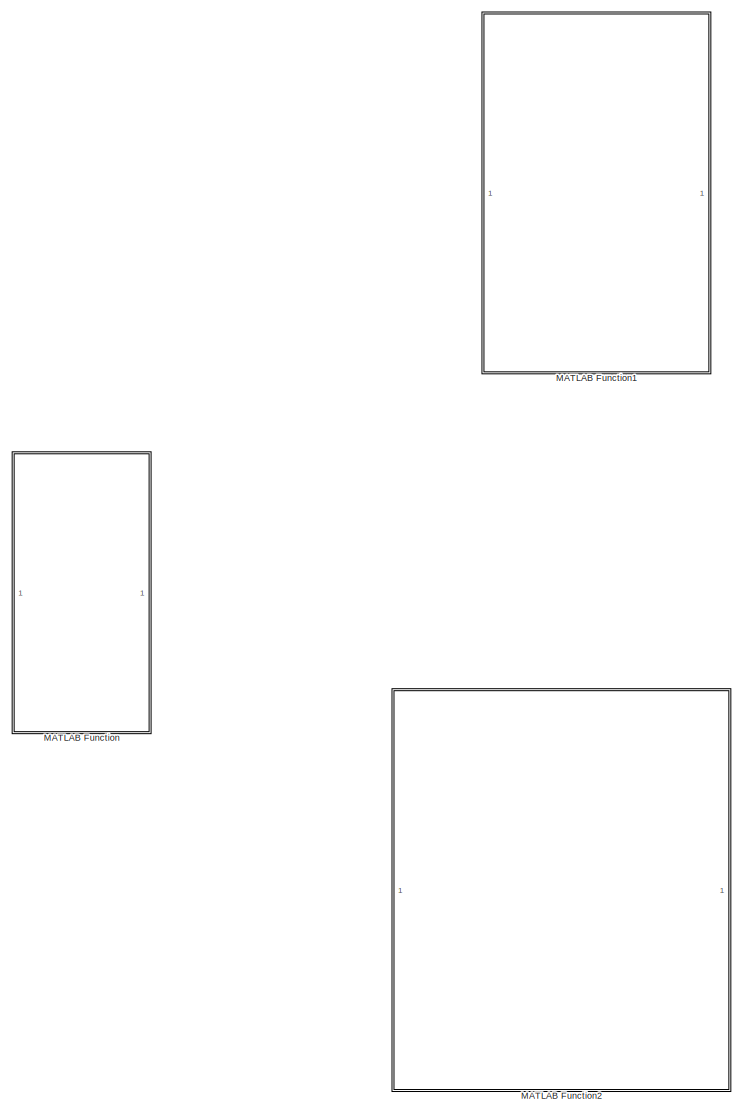
[diagram: root canvas - part 1/2, left side, full height]
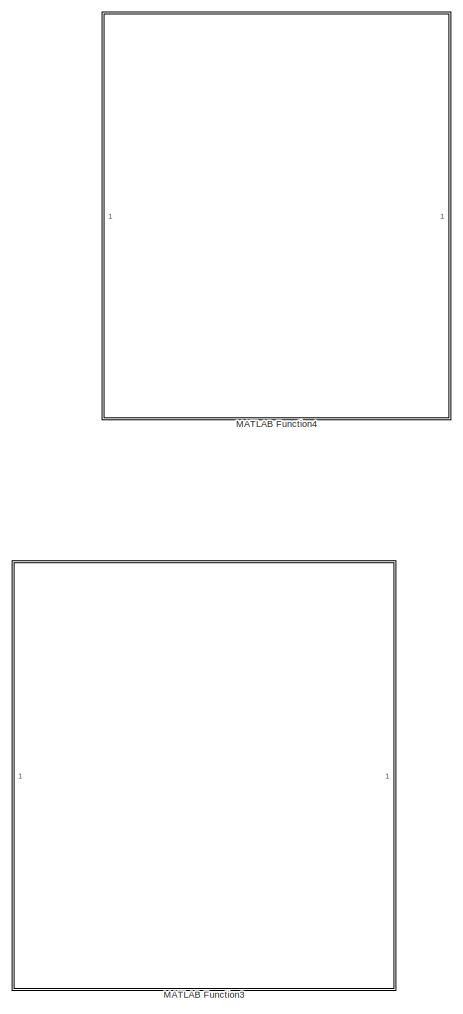
[diagram: root canvas - part 2/2, right side, full height]
MODEL slx_fecd2f738feb
KIND model
CONFIG AbsTol = auto
CONFIG EnableMultiTasking = off
CONFIG FixedStep = auto
CONFIG MaxStep = auto
CONFIG MinStep = auto
CONFIG RelTol = 1e-3
CONFIG SampleTimeConstraint = Unconstrained
CONFIG SolverName = VariableStepAuto
CONFIG StartTime = 0.0
CONFIG StopTime = 10.0
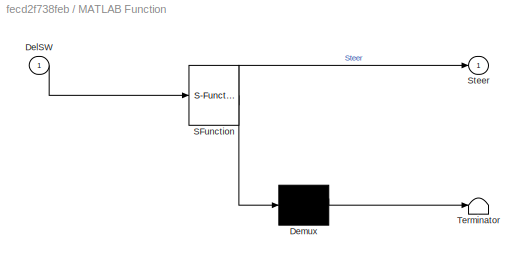
BLOCK [SubSystem] MATLAB Function
  ErrorFcn = Stateflow.Translate.translate
  LibrarySourceBlock = simulink/User-Defined\nFunctions/MATLAB Function
  PermitHierarchicalResolution = ExplicitOnly
  SFBlockType = MATLAB Function
  TreatAsAtomicUnit = on
BLOCK [Demux] MATLAB Function/ Demux 
  Outputs = 1
BLOCK [S-Function] MATLAB Function/ SFunction 
  EnableBusSupport = off
  FunctionName = sf_sfun
  Parameters = AckermanFront,AckermanRear,ToeFront,ToeRear
  PortCounts = [1 2]
  SFcnIsStateOwnerBlock = off
  SFunctionDeploymentMode = off
  Tag = Stateflow S-Function 2
BLOCK [Terminator] MATLAB Function/ Terminator 
BLOCK [Inport] MATLAB Function/DelSW
BLOCK [Outport] MATLAB Function/Steer
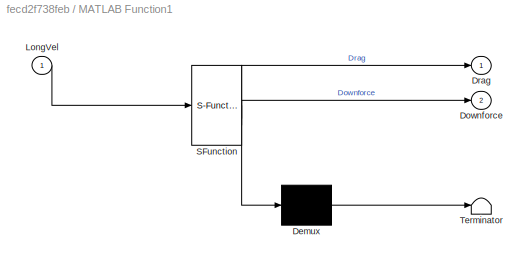
BLOCK [SubSystem] MATLAB Function1
  ErrorFcn = Stateflow.Translate.translate
  LibrarySourceBlock = simulink/User-Defined\nFunctions/MATLAB Function
  PermitHierarchicalResolution = ExplicitOnly
  SFBlockType = MATLAB Function
  TreatAsAtomicUnit = on
BLOCK [Demux] MATLAB Function1/ Demux 
  Outputs = 1
BLOCK [S-Function] MATLAB Function1/ SFunction 
  EnableBusSupport = off
  FunctionName = sf_sfun
  Parameters = AirDensity,DragCoeff,LiftCoeff,RefArea
  PortCounts = [1 3]
  SFcnIsStateOwnerBlock = off
  SFunctionDeploymentMode = off
  Tag = Stateflow S-Function 1
BLOCK [Terminator] MATLAB Function1/ Terminator 
BLOCK [Outport] MATLAB Function1/Downforce
  Port = 2
BLOCK [Outport] MATLAB Function1/Drag
BLOCK [Inport] MATLAB Function1/LongVel
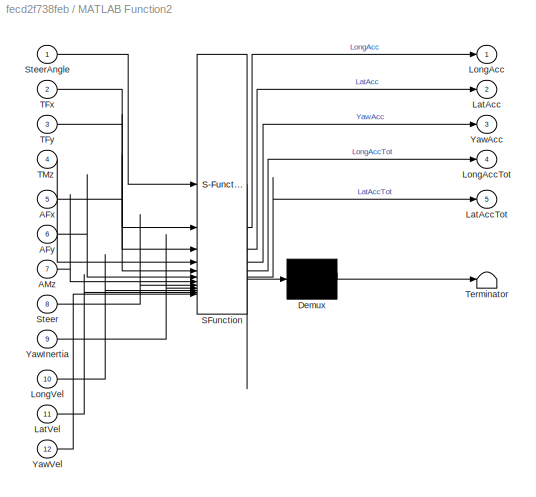
BLOCK [SubSystem] MATLAB Function2
  ErrorFcn = Stateflow.Translate.translate
  LibrarySourceBlock = simulink/User-Defined\nFunctions/MATLAB Function
  PermitHierarchicalResolution = ExplicitOnly
  SFBlockType = MATLAB Function
  TreatAsAtomicUnit = on
BLOCK [Demux] MATLAB Function2/ Demux 
  Outputs = 1
BLOCK [S-Function] MATLAB Function2/ SFunction 
  EnableBusSupport = off
  FunctionName = sf_sfun
  Parameters = CoG,Mass,PercentFront,TrackWidth,Wheelbase
  PortCounts = [12 6]
  SFcnIsStateOwnerBlock = off
  SFunctionDeploymentMode = off
  Tag = Stateflow S-Function 3
BLOCK [Terminator] MATLAB Function2/ Terminator 
BLOCK [Inport] MATLAB Function2/AFx
  Port = 5
BLOCK [Inport] MATLAB Function2/AFy
  Port = 6
BLOCK [Inport] MATLAB Function2/AMz
  Port = 7
BLOCK [Outport] MATLAB Function2/LatAcc
  Port = 2
BLOCK [Outport] MATLAB Function2/LatAccTot
  Port = 5
BLOCK [Inport] MATLAB Function2/LatVel
  Port = 11
BLOCK [Outport] MATLAB Function2/LongAcc
BLOCK [Outport] MATLAB Function2/LongAccTot
  Port = 4
BLOCK [Inport] MATLAB Function2/LongVel
  Port = 10
BLOCK [Inport] MATLAB Function2/Steer
  Port = 8
BLOCK [Inport] MATLAB Function2/SteerAngle
BLOCK [Inport] MATLAB Function2/TFx
  Port = 2
BLOCK [Inport] MATLAB Function2/TFy
  Port = 3
BLOCK [Inport] MATLAB Function2/TMz
  Port = 4
BLOCK [Outport] MATLAB Function2/YawAcc
  Port = 3
BLOCK [Inport] MATLAB Function2/YawInertia
  Port = 9
BLOCK [Inport] MATLAB Function2/YawVel
  Port = 12
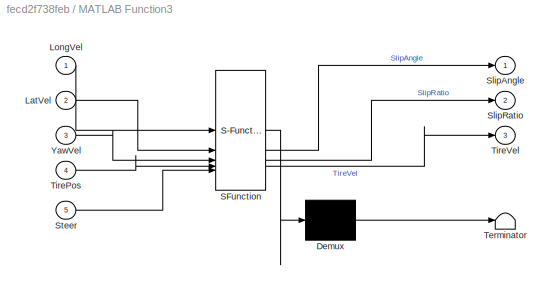
BLOCK [SubSystem] MATLAB Function3
  ErrorFcn = Stateflow.Translate.translate
  LibrarySourceBlock = simulink/User-Defined\nFunctions/MATLAB Function
  PermitHierarchicalResolution = ExplicitOnly
  SFBlockType = MATLAB Function
  TreatAsAtomicUnit = on
BLOCK [Demux] MATLAB Function3/ Demux 
  Outputs = 1
BLOCK [S-Function] MATLAB Function3/ SFunction 
  EnableBusSupport = off
  FunctionName = sf_sfun
  Parameters = EffRadius,SpinRate
  PortCounts = [5 4]
  SFcnIsStateOwnerBlock = off
  SFunctionDeploymentMode = off
  Tag = Stateflow S-Function 4
BLOCK [Terminator] MATLAB Function3/ Terminator 
BLOCK [Inport] MATLAB Function3/LatVel
  Port = 2
BLOCK [Inport] MATLAB Function3/LongVel
BLOCK [Outport] MATLAB Function3/SlipAngle
BLOCK [Outport] MATLAB Function3/SlipRatio
  Port = 2
BLOCK [Inport] MATLAB Function3/Steer
  Port = 5
BLOCK [Inport] MATLAB Function3/TirePos
  Port = 4
BLOCK [Outport] MATLAB Function3/TireVel
  Port = 3
BLOCK [Inport] MATLAB Function3/YawVel
  Port = 3
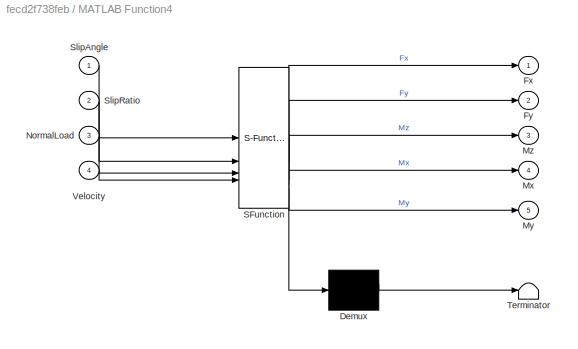
BLOCK [SubSystem] MATLAB Function4
  ErrorFcn = Stateflow.Translate.translate
  LibrarySourceBlock = simulink/User-Defined\nFunctions/MATLAB Function
  PermitHierarchicalResolution = ExplicitOnly
  SFBlockType = MATLAB Function
  TreatAsAtomicUnit = on
BLOCK [Demux] MATLAB Function4/ Demux 
  Outputs = 1
BLOCK [S-Function] MATLAB Function4/ SFunction 
  EnableBusSupport = off
  FunctionName = sf_sfun
  Parameters = Idx,Inclination,Model,Pressure,Tire
  PortCounts = [4 6]
  SFcnIsStateOwnerBlock = off
  SFunctionDeploymentMode = off
  Tag = Stateflow S-Function 5
BLOCK [Terminator] MATLAB Function4/ Terminator 
BLOCK [Outport] MATLAB Function4/Fx
BLOCK [Outport] MATLAB Function4/Fy
  Port = 2
BLOCK [Outport] MATLAB Function4/Mx
  Port = 4
BLOCK [Outport] MATLAB Function4/My
  Port = 5
BLOCK [Outport] MATLAB Function4/Mz
  Port = 3
BLOCK [Inport] MATLAB Function4/NormalLoad
  Port = 3
BLOCK [Inport] MATLAB Function4/SlipAngle
BLOCK [Inport] MATLAB Function4/SlipRatio
  Port = 2
BLOCK [Inport] MATLAB Function4/Velocity
  Port = 4
CHART MATLAB Function1 states=1 transitions=1
  STATE_LABEL 'eML_blk_kernel()'
  STATE_LABEL 'SCRIPT:\nfunction [Drag, Downforce] = SimplifiedAeroLoads( LongVel, ...\n    AirDensity, RefArea, DragCoeff, LiftCoeff)\n%% SimplifiedWeightTransfer - Simplified Normal Loads\n% Computes tire normal loads using simplified weight transfer and\n% aerodynamic loading.\n% \n% Inputs:\n%   LongVel    - (n,1 numeric) Longitudinal Velocity {dot{x}}  [m/s]\n%   AirDensity - (n,1 numeric) Air Density           {rho...<+915ch>'
CHART MATLAB Function states=1 transitions=1
  STATE_LABEL 'eML_blk_kernel()'
  STATE_LABEL "SCRIPT:\nfunction Steer      = SteerFunction( DelSW, ToeFront, ToeRear, AckermanFront, AckermanRear) \nSteer = [1:4]';\nSteer(1) = -ToeFront + (DelSW + AckermanFront .* DelSW^2);\nSteer(2) = ToeFront + (DelSW - AckermanFront .* DelSW^2);\nSteer(3) = -ToeRear - (DelSW - AckermanRear .* DelSW^2);\nSteer(4) = ToeRear - (DelSW + AckermanRear .* DelSW^2);\n"
CHART MATLAB Function2 states=1 transitions=1
  STATE_LABEL 'eML_blk_kernel()'
  STATE_LABEL 'SCRIPT:\nfunction [LongAcc, LatAcc, YawAcc, LongAccTot, LatAccTot] = ...\n    PlanarModelAcceleration(SteerAngle,TFx, TFy, TMz, AFx, AFy, AMz, ...                             % Loads\n        Steer, ...                         % Geometry\n        YawInertia, LongVel, LatVel, YawVel,  PercentFront,...                                 % Velocities\nWheelbase, TrackWidth, Mass, CoG) ...                    ...<+3596ch>'
CHART MATLAB Function3 states=1 transitions=1
  STATE_LABEL 'eML_blk_kernel()'
  STATE_LABEL 'SCRIPT:\nfunction [SlipAngle, SlipRatio, TireVel] = SlipEstimation( ...\n    LongVel, LatVel, YawVel, TirePos, Steer, EffRadius, SpinRate)\n\n%% SlipEstimation - Slip Angle and Slip Ratio Calculations\n% Estimates tire slips and center velocity from chassis velocity and a\n% handful of tire states.\n% \n% Inputs:\n%   LongVel   - (1,1 numeric) Longitudinal Velocity {x_dot}   [m/s]\n%   LatVel    - (1,1 nume...<+1954ch>'
CHART MATLAB Function4 states=1 transitions=1
  STATE_LABEL 'eML_blk_kernel()'
  STATE_LABEL 'SCRIPT:\nfunction [Fx, Fy, Mz, Mx, My] = ContactPatchLoads( SlipAngle, SlipRatio, ...\n    NormalLoad, Velocity, ...\n    Tire, ...\nPressure, Inclination, Idx, Model)\n%% ContactPatchLoads - Tire Load Evaluation\n% This script evaluates a Pacejka contact patch tire model using the\n% formatted by TireModelFittingMain(). \n% \n% Inputs:\n%   Tire          - (struct)      Pacejka Parameters\n%   SlipAngle    ...<+3551ch>'
CHART  states=0 transitions=0
CHART  states=0 transitions=0
CHART  states=0 transitions=0
CHART  states=0 transitions=0
CHART  states=0 transitions=0
